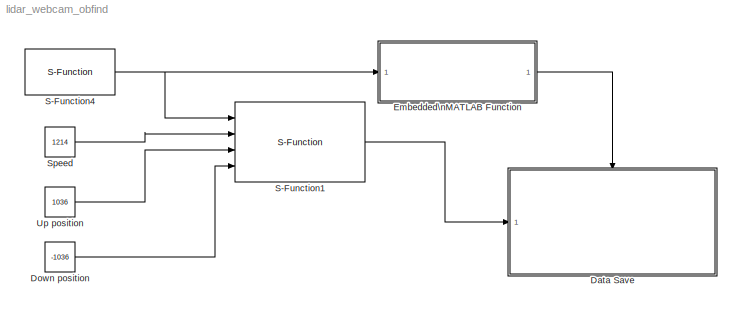
MODEL lidar_webcam_obfind
KIND model
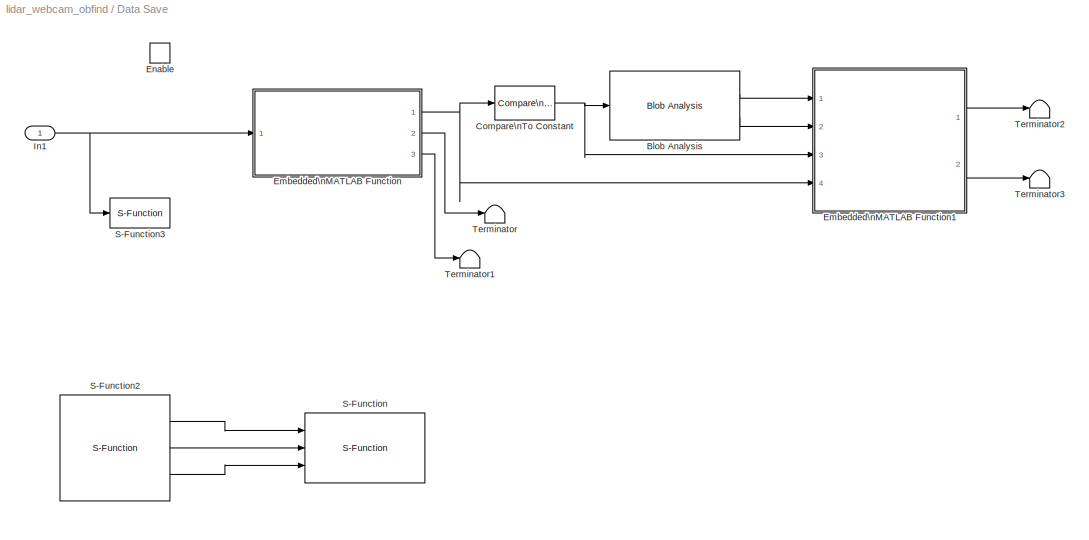
BLOCK [SubSystem] Data Save
  FunctionWithSeparateData = off
  MaskHideContents = off
  MinAlgLoopOccurrences = off
  Opaque = off
  Ports = [1, 0, 1]
  PropExecContextOutsideSubsystem = off
  RTWSystemCode = Auto
  RequestExecContextInheritance = off
  TreatAsAtomicUnit = on
BLOCK [Reference] Data Save/Blob Analysis  REF=vipstatistics/Blob Analysis
  DialogController = vipDDGCreate
  DialogControllerArgs = DataTag0
  LockScale = off
  Ports = [1, 2]
  SourceBlock = vipstatistics/Blob Analysis
  SourceType = Blob Analysis
  accumFracLength = 0
  accumMode = Binary point scaling
  accumWordLength = 32
  angle = off
  area = off
  bBox = on
  centroid = on
  conn = 8
  eccentricity = off
  equivDiameterSq = off
  excludeBorderBlob = on
  extent = off
  fillValues = -1
  firstCoeffFracLength = 14
  firstCoeffMode = Binary point scaling
  firstCoeffWordLength = 16
  isCount = off
  isFill = on
  isLabel = off
  isOutVarDim = off
  majorAxis = off
  maxArea = intmax('uint32')
  maxBlobs = 50
  memoryFracLength = 16
  memoryMode = Same as product output
  memoryWordLength = 32
  minArea = 30
  minorAxis = off
  outDT = double
  outputFracLength = 16
  outputMode = Binary point scaling
  outputWordLength = 32
  overflowMode = off
  perimeter = off
  prodOutputFracLength = 16
  prodOutputMode = Binary point scaling
  prodOutputWordLength = 32
  roundingMode = Floor
  secondCoeffFracLength = 16
  secondCoeffMode = Binary point scaling
  secondCoeffWordLength = 32
  useMaxArea = off
  useMinArea = on
  warnIfNumBlobsExceeded = on
BLOCK [Reference] Data Save/Compare\nTo Constant  REF=simulink/Logic and Bit\nOperations/Compare\nTo Constant
  FunctionWithSeparateData = off
  LogicOutDataTypeMode = boolean
  Ports = [1, 1]
  RTWMemSecDataConstants = Inherit from model
  RTWMemSecDataInternal = Inherit from model
  RTWMemSecDataParameters = Inherit from model
  RTWMemSecFuncExecute = Inherit from model
  RTWMemSecFuncInitTerm = Inherit from model
  ShowPortLabels = FromPortIcon
  SourceBlock = simulink/Logic and Bit\nOperations/Compare\nTo Constant
  SourceType = Compare To Constant
  SystemSampleTime = -1
  ZeroCross = off
  const = 15000
  relop = <=
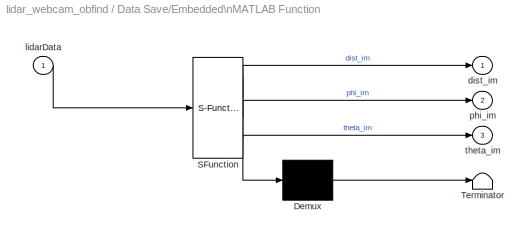
BLOCK [SubSystem] Data Save/Embedded\nMATLAB Function
  FunctionWithSeparateData = off
  MaskDescription = Embedded MATLAB block
  MaskDisplay = disp('image_creator');
  MaskHideContents = off
  MaskIconFrame = on
  MaskIconOpaque = off
  MaskIconRotate = none
  MaskIconUnits = autoscale
  MaskPortRotate = default
  MaskSelfModifiable = on
  MaskType = Stateflow
  MinAlgLoopOccurrences = off
  Opaque = off
  PermitHierarchicalResolution = ExplicitOnly
  Ports = [1, 3]
  PropExecContextOutsideSubsystem = off
  RTWSystemCode = Auto
  RequestExecContextInheritance = off
BLOCK [Demux] Data Save/Embedded\nMATLAB Function/ Demux 
  Outputs = 1
  Ports = [1, 1]
BLOCK [S-Function] Data Save/Embedded\nMATLAB Function/ SFunction 
  EnableBusSupport = on
  FunctionName = sf_sfun
  PortCounts = [1 4]
  Ports = [1, 4]
  Tag = Stateflow S-Function lidar_webcam_obfind 1
BLOCK [Terminator] Data Save/Embedded\nMATLAB Function/ Terminator 
BLOCK [Outport] Data Save/Embedded\nMATLAB Function/dist_im
  IconDisplay = Port number
  OutDataType = sfix(16)
  OutScaling = 2^0
BLOCK [Inport] Data Save/Embedded\nMATLAB Function/lidarData
  IconDisplay = Port number
  OutDataType = sfix(16)
  OutScaling = 2^0
BLOCK [Outport] Data Save/Embedded\nMATLAB Function/phi_im
  IconDisplay = Port number
  Port = 2
BLOCK [Outport] Data Save/Embedded\nMATLAB Function/theta_im
  IconDisplay = Port number
  Port = 3
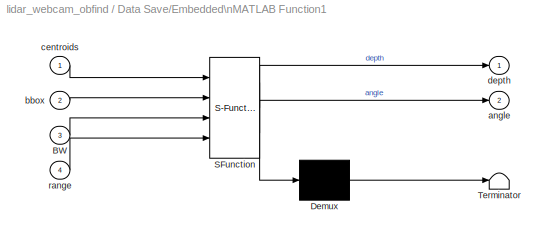
BLOCK [SubSystem] Data Save/Embedded\nMATLAB Function1
  FunctionWithSeparateData = off
  MaskDescription = Embedded MATLAB block
  MaskDisplay = disp('depth_and_range');
  MaskHideContents = off
  MaskIconFrame = on
  MaskIconOpaque = off
  MaskIconRotate = none
  MaskIconUnits = autoscale
  MaskPortRotate = default
  MaskSelfModifiable = on
  MaskType = Stateflow
  MinAlgLoopOccurrences = off
  Opaque = off
  PermitHierarchicalResolution = ExplicitOnly
  Ports = [4, 2]
  PropExecContextOutsideSubsystem = off
  RTWSystemCode = Auto
  RequestExecContextInheritance = off
BLOCK [Demux] Data Save/Embedded\nMATLAB Function1/ Demux 
  Outputs = 1
  Ports = [1, 1]
BLOCK [S-Function] Data Save/Embedded\nMATLAB Function1/ SFunction 
  EnableBusSupport = on
  FunctionName = sf_sfun
  PortCounts = [4 3]
  Ports = [4, 3]
  Tag = Stateflow S-Function lidar_webcam_obfind 3
BLOCK [Terminator] Data Save/Embedded\nMATLAB Function1/ Terminator 
BLOCK [Inport] Data Save/Embedded\nMATLAB Function1/BW
  IconDisplay = Port number
  Port = 3
BLOCK [Outport] Data Save/Embedded\nMATLAB Function1/angle
  IconDisplay = Port number
  Port = 2
BLOCK [Inport] Data Save/Embedded\nMATLAB Function1/bbox
  IconDisplay = Port number
  Port = 2
BLOCK [Inport] Data Save/Embedded\nMATLAB Function1/centroids
  IconDisplay = Port number
  OutDataType = sfix(16)
  OutScaling = 2^0
BLOCK [Outport] Data Save/Embedded\nMATLAB Function1/depth
  IconDisplay = Port number
  OutDataType = sfix(16)
  OutScaling = 2^0
BLOCK [Inport] Data Save/Embedded\nMATLAB Function1/range
  IconDisplay = Port number
  Port = 4
BLOCK [EnablePort] Data Save/Enable
  Ports = []
BLOCK [Inport] Data Save/In1
  IconDisplay = Port number
  OutDataType = fixdt(1, 16)
  OutScaling = 2^0
BLOCK [S-Function] Data Save/S-Function
  EnableBusSupport = off
  FunctionName = videoExport_v2
  Ports = [3]
BLOCK [S-Function] Data Save/S-Function2
  EnableBusSupport = off
  FunctionName = WebcamTest_v2
  Ports = [0, 3]
BLOCK [S-Function] Data Save/S-Function3
  EnableBusSupport = off
  FunctionName = lidarExport
  Ports = [1]
BLOCK [Terminator] Data Save/Terminator
BLOCK [Terminator] Data Save/Terminator1
BLOCK [Terminator] Data Save/Terminator2
BLOCK [Terminator] Data Save/Terminator3
BLOCK [Constant] Down position
  OutDataType = fixdt(1, 16)
  OutScaling = 2^0
  Value = -1036
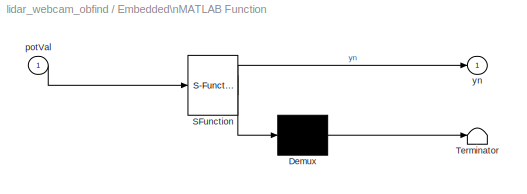
BLOCK [SubSystem] Embedded\nMATLAB Function
  FunctionWithSeparateData = off
  MaskDescription = Embedded MATLAB block
  MaskDisplay = disp('check_pot_val');
  MaskHideContents = off
  MaskIconFrame = on
  MaskIconOpaque = off
  MaskIconRotate = none
  MaskIconUnits = autoscale
  MaskPortRotate = default
  MaskSelfModifiable = on
  MaskType = Stateflow
  MinAlgLoopOccurrences = off
  Opaque = off
  PermitHierarchicalResolution = ExplicitOnly
  Ports = [1, 1]
  PropExecContextOutsideSubsystem = off
  RTWSystemCode = Auto
  RequestExecContextInheritance = off
BLOCK [Demux] Embedded\nMATLAB Function/ Demux 
  Outputs = 1
  Ports = [1, 1]
BLOCK [S-Function] Embedded\nMATLAB Function/ SFunction 
  EnableBusSupport = on
  FunctionName = sf_sfun
  PortCounts = [1 2]
  Ports = [1, 2]
  Tag = Stateflow S-Function lidar_webcam_obfind 2
BLOCK [Terminator] Embedded\nMATLAB Function/ Terminator 
BLOCK [Inport] Embedded\nMATLAB Function/potVal
  IconDisplay = Port number
  OutDataType = sfix(16)
  OutScaling = 2^0
BLOCK [Outport] Embedded\nMATLAB Function/yn
  IconDisplay = Port number
  OutDataType = sfix(16)
  OutScaling = 2^0
BLOCK [S-Function] S-Function1
  EnableBusSupport = off
  FunctionName = lidar_zero_test_v3
  Ports = [4, 1]
BLOCK [S-Function] S-Function4
  EnableBusSupport = off
  FunctionName = pot_readerV2
  Ports = [0, 1]
BLOCK [Constant] Speed
  OutDataType = fixdt(1, 16)
  OutScaling = 2^0
  Value = 1214
BLOCK [Constant] Up position
  OutDataType = fixdt(1, 16)
  OutScaling = 2^0
  Value = 1036
LINE Data Save/Blob Analysis:1 -> Data Save/Embedded\nMATLAB Function1:1
LINE Data Save/Blob Analysis:2 -> Data Save/Embedded\nMATLAB Function1:2
NET Data Save/Compare\nTo Constant:1 -> Data Save/Blob Analysis:1, Data Save/Embedded\nMATLAB Function1:3
LINE Data Save/Embedded\nMATLAB Function/ Demux :1 -> Data Save/Embedded\nMATLAB Function/ Terminator :1
LINE Data Save/Embedded\nMATLAB Function/ SFunction :1 -> Data Save/Embedded\nMATLAB Function/ Demux :1
LINE Data Save/Embedded\nMATLAB Function/ SFunction :2 -> Data Save/Embedded\nMATLAB Function/dist_im:1
LINE Data Save/Embedded\nMATLAB Function/ SFunction :3 -> Data Save/Embedded\nMATLAB Function/phi_im:1
LINE Data Save/Embedded\nMATLAB Function/ SFunction :4 -> Data Save/Embedded\nMATLAB Function/theta_im:1
LINE Data Save/Embedded\nMATLAB Function/lidarData:1 -> Data Save/Embedded\nMATLAB Function/ SFunction :1
LINE Data Save/Embedded\nMATLAB Function1/ Demux :1 -> Data Save/Embedded\nMATLAB Function1/ Terminator :1
LINE Data Save/Embedded\nMATLAB Function1/ SFunction :1 -> Data Save/Embedded\nMATLAB Function1/ Demux :1
LINE Data Save/Embedded\nMATLAB Function1/ SFunction :2 -> Data Save/Embedded\nMATLAB Function1/depth:1
LINE Data Save/Embedded\nMATLAB Function1/ SFunction :3 -> Data Save/Embedded\nMATLAB Function1/angle:1
LINE Data Save/Embedded\nMATLAB Function1/BW:1 -> Data Save/Embedded\nMATLAB Function1/ SFunction :3
LINE Data Save/Embedded\nMATLAB Function1/bbox:1 -> Data Save/Embedded\nMATLAB Function1/ SFunction :2
LINE Data Save/Embedded\nMATLAB Function1/centroids:1 -> Data Save/Embedded\nMATLAB Function1/ SFunction :1
LINE Data Save/Embedded\nMATLAB Function1/range:1 -> Data Save/Embedded\nMATLAB Function1/ SFunction :4
LINE Data Save/Embedded\nMATLAB Function1:1 -> Data Save/Terminator2:1
LINE Data Save/Embedded\nMATLAB Function1:2 -> Data Save/Terminator3:1
NET Data Save/Embedded\nMATLAB Function:1 -> Data Save/Compare\nTo Constant:1, Data Save/Embedded\nMATLAB Function1:4
LINE Data Save/Embedded\nMATLAB Function:2 -> Data Save/Terminator:1
LINE Data Save/Embedded\nMATLAB Function:3 -> Data Save/Terminator1:1
NET Data Save/In1:1 -> Data Save/Embedded\nMATLAB Function:1, Data Save/S-Function3:1
LINE Data Save/S-Function2:1 -> Data Save/S-Function:1
LINE Data Save/S-Function2:2 -> Data Save/S-Function:2
LINE Data Save/S-Function2:3 -> Data Save/S-Function:3
LINE Down position:1 -> S-Function1:4
LINE Embedded\nMATLAB Function/ Demux :1 -> Embedded\nMATLAB Function/ Terminator :1
LINE Embedded\nMATLAB Function/ SFunction :1 -> Embedded\nMATLAB Function/ Demux :1
LINE Embedded\nMATLAB Function/ SFunction :2 -> Embedded\nMATLAB Function/yn:1
LINE Embedded\nMATLAB Function/potVal:1 -> Embedded\nMATLAB Function/ SFunction :1
LINE Embedded\nMATLAB Function:1 -> Data Save:enable
LINE S-Function1:1 -> Data Save:1
NET S-Function4:1 -> Embedded\nMATLAB Function:1, S-Function1:1
LINE Speed:1 -> S-Function1:2
LINE Up position:1 -> S-Function1:3
note: NET lines group one-source signal fan-out (src -> all destinations, sorted); 1:1 wires keep LINE
CHART Data Save/Embedded\nMATLAB Function states=1 transitions=1
  STATE_LABEL 'eML_blk_kernel()'
CHART Embedded\nMATLAB Function states=1 transitions=1
  STATE_LABEL 'eML_blk_kernel()'
CHART Data Save/Embedded\nMATLAB Function1 states=1 transitions=1
  STATE_LABEL 'eML_blk_kernel()'
